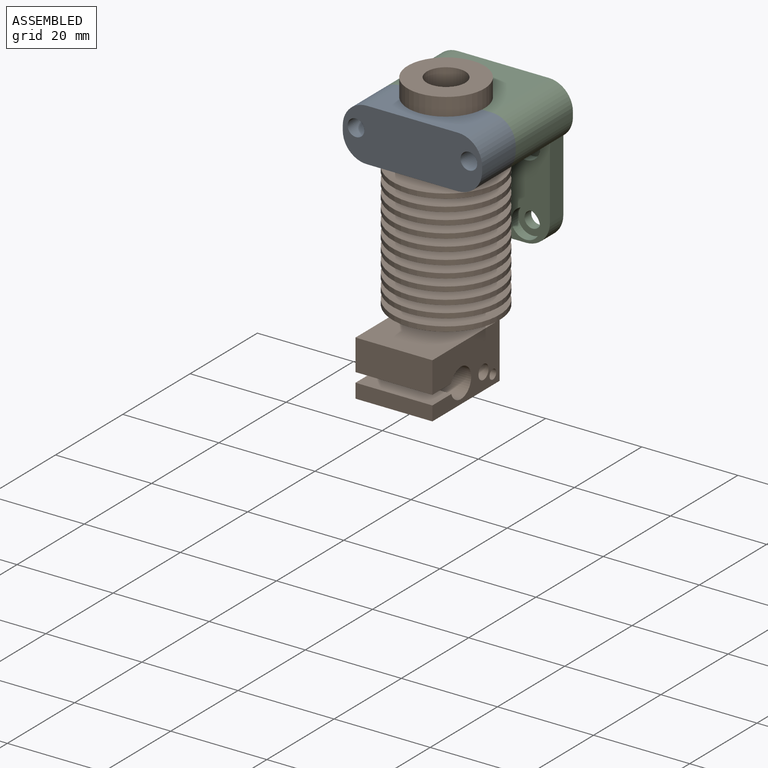
[diagram: assembled view]
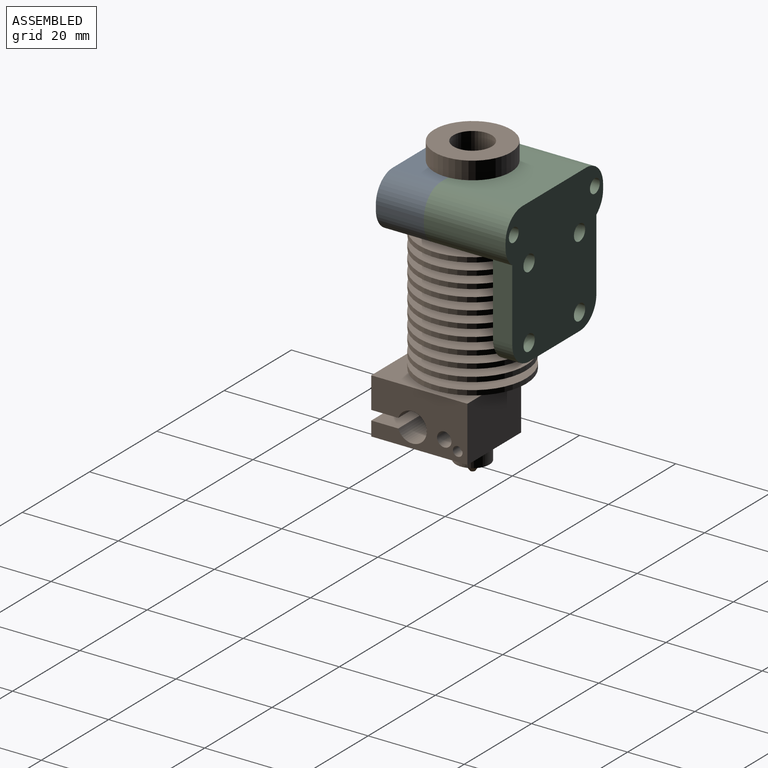
[diagram: assembled view, second angle]
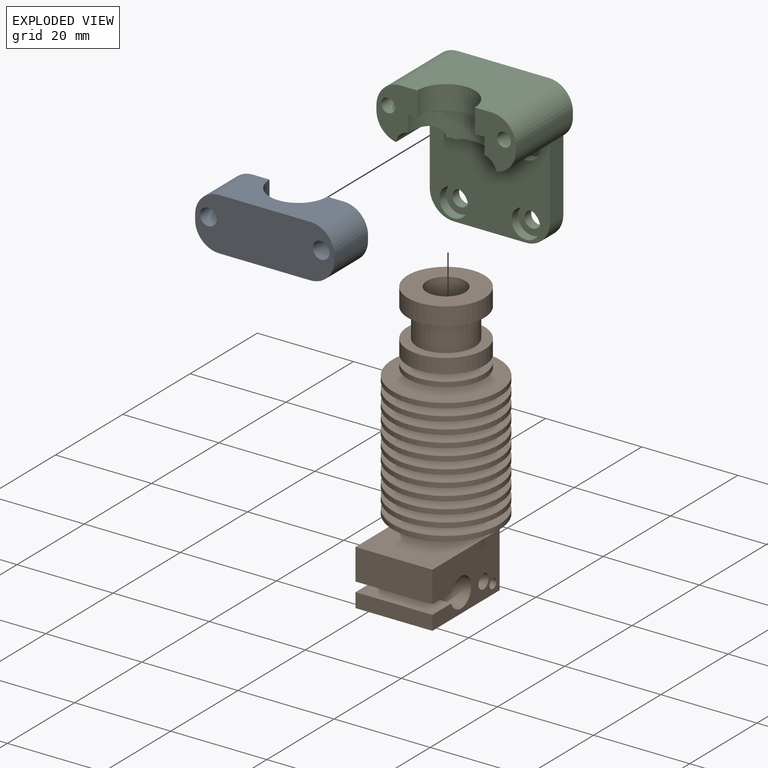
[diagram: exploded view]
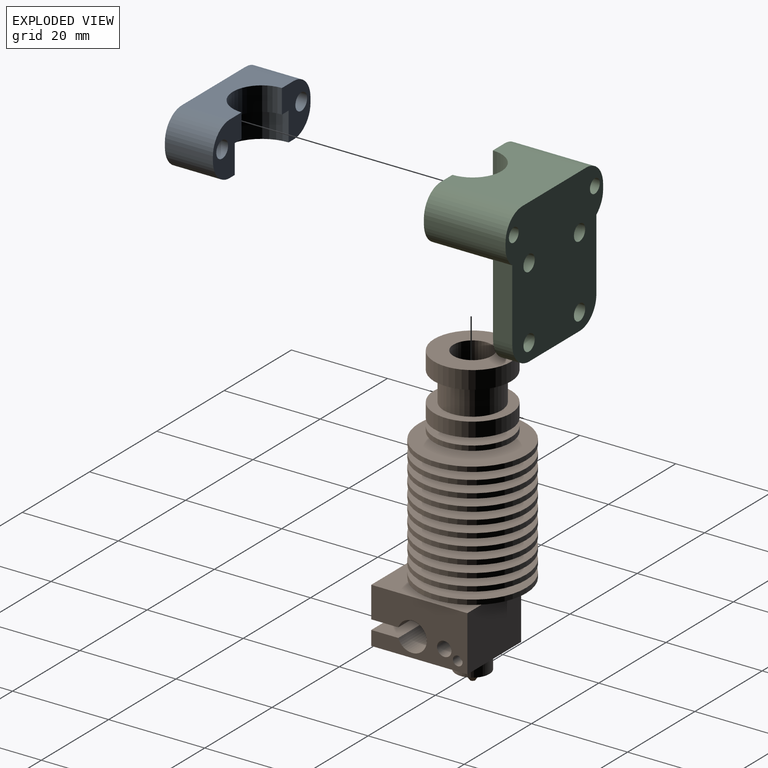
[diagram: exploded view, second angle]
ASSEMBLY  parts=3 mates=2
PART A: 16 faces, bbox 29x11x10 mm
  f0: plane 11x8.5mm, normal (0,0,1), area 61.1mm2, adj f1,f2,f5,f6,f7,f9,f10,f11
  f1: plane 19x10mm, normal (0,-1,0), area 89.5mm2, adj f0,f3,f4,f5,f11,f12
  f2: plane 19x10mm, normal (0,1,0), area 133.5mm2, adj f0,f3,f4,f7,f10,f13
  f3: plane 11x8.5mm, normal (0,0,1), area 61.1mm2, adj f1,f2,f5,f6,f7,f8,f12,f13
  f4: plane 29x11mm, normal (0,0,-1), area 278.3mm2, adj f1,f2,f8,f9,f10,f11,f12,f13
  f5: cylinder r=8mm len=16mm, axis (0,-1,0), area 150.8mm2, adj f0,f1,f3,f6
  f6: plane 16x8mm, normal (0,-1,0), area 44mm2, adj f0,f3,f5,f7
  f7: cylinder r=6mm len=12mm, axis (0,1,0), area 94.2mm2, adj f0,f2,f3,f6
  f8: plane 10x1mm, normal (-1,0,0), area 10mm2, adj f3,f4,f12,f13
  f9: plane 10x1mm, normal (1,0,0), area 10mm2, adj f0,f4,f10,f11
  f10: cylinder r=5mm len=10mm, axis (0,0,-1), area 78.5mm2, adj f0,f2,f4,f9
  f11: cylinder r=5mm len=10mm, axis (0,0,1), area 78.5mm2, adj f0,f1,f4,f9
  f12: cylinder r=5mm len=10mm, axis (0,0,1), area 78.5mm2, adj f1,f3,f4,f8
  f13: cylinder r=5mm len=10mm, axis (0,0,-1), area 78.5mm2, adj f2,f3,f4,f8
  f14: cylinder r=1.75mm len=10mm, axis (0,0,1), area 110mm2, adj f0,f4
  f15: cylinder r=1.75mm len=10mm, axis (0,0,1), area 110mm2, adj f3,f4
PART B: 92 faces, bbox 26.7x22.3x62 mm
  f0: cylinder r=2.1mm len=18.9mm, axis (0,0,1), area 249.4mm2, adj f57,f59
  f1: cylinder r=8mm len=16mm, axis (0,0,1), area 186mm2, adj f2,f3
  f2: plane 16x16mm, normal (0,0,-1), area 88mm2, adj f1,f4
  f3: plane 16x16mm, normal (0,0,1), area 150.8mm2, adj f1,f56
  f4: cylinder r=6mm len=12mm, axis (0,0,1), area 226.2mm2, adj f2,f7
  f5: cylinder r=8mm len=16mm, axis (0,0,1), area 150.8mm2, adj f6,f7
  f6: plane 16x16mm, normal (0,0,-1), area 150.8mm2, adj f5,f55
  f7: plane 16x16mm, normal (0,0,1), area 88mm2, adj f4,f5
  f8: plane 22.3x22.3mm, normal (0,0,-1), area 359.9mm2, adj f9,f60
  f9: cylinder r=11.15mm len=22.3mm, axis (0,0,1), area 70.1mm2, adj f8,f10
  f10: plane 22.3x22.3mm, normal (0,0,1), area 277.5mm2, adj f9,f11
  f11: cone r=5.89mm half-angle=4.2deg, axis (0,0,-1), area 56.2mm2, adj f10,f12
  f12: plane 22.3x22.3mm, normal (0,0,-1), area 281.5mm2, adj f11,f13
  f13: cylinder r=11.15mm len=22.3mm, axis (0,0,1), area 70.1mm2, adj f12,f14
  f14: plane 22.3x22.3mm, normal (0,0,1), area 284.2mm2, adj f13,f15
  f15: cone r=5.71mm half-angle=4.2deg, axis (0,0,-1), area 54.5mm2, adj f14,f16
  f16: plane 22.3x22.3mm, normal (0,0,-1), area 288.2mm2, adj f15,f17
  f17: cylinder r=11.15mm len=22.3mm, axis (0,0,1), area 70.1mm2, adj f16,f18
  f18: plane 22.3x22.3mm, normal (0,0,1), area 290.8mm2, adj f17,f19
  f19: cone r=5.53mm half-angle=4.2deg, axis (0,0,-1), area 52.7mm2, adj f18,f20
  f20: plane 22.3x22.3mm, normal (0,0,-1), area 294.6mm2, adj f19,f21
  f21: cylinder r=11.15mm len=22.3mm, axis (0,0,1), area 70.1mm2, adj f20,f22
  f22: plane 22.3x22.3mm, normal (0,0,1), area 297.1mm2, adj f21,f23
  f23: cone r=5.35mm half-angle=4.2deg, axis (0,0,-1), area 51mm2, adj f22,f24
  f24: plane 22.3x22.3mm, normal (0,0,-1), area 300.8mm2, adj f23,f25
  f25: cylinder r=11.15mm len=22.3mm, axis (0,0,1), area 70.1mm2, adj f24,f26
  f26: plane 22.3x22.3mm, normal (0,0,1), area 303.2mm2, adj f25,f27
  f27: cone r=5.16mm half-angle=4.2deg, axis (0,0,-1), area 49.3mm2, adj f26,f28
  f28: plane 22.3x22.3mm, normal (0,0,-1), area 306.8mm2, adj f27,f29
  f29: cylinder r=11.15mm len=22.3mm, axis (0,0,1), area 70.1mm2, adj f28,f30
  f30: plane 22.3x22.3mm, normal (0,0,1), area 309.1mm2, adj f29,f31
  f31: cone r=4.98mm half-angle=4.2deg, axis (0,0,-1), area 47.6mm2, adj f30,f32
  f32: plane 22.3x22.3mm, normal (0,0,-1), area 312.6mm2, adj f31,f33
  f33: cylinder r=11.15mm len=22.3mm, axis (0,0,1), area 70.1mm2, adj f32,f34
  f34: plane 22.3x22.3mm, normal (0,0,1), area 314.9mm2, adj f33,f35
  f35: cone r=4.8mm half-angle=4.2deg, axis (0,0,-1), area 45.9mm2, adj f34,f36
  f36: plane 22.3x22.3mm, normal (0,0,-1), area 318.2mm2, adj f35,f37
  f37: cylinder r=11.15mm len=22.3mm, axis (0,0,1), area 70.1mm2, adj f36,f38
  f38: plane 22.3x22.3mm, normal (0,0,1), area 320.4mm2, adj f37,f39
  f39: cone r=4.62mm half-angle=4.2deg, axis (0,0,-1), area 44.2mm2, adj f38,f40
  f40: plane 22.3x22.3mm, normal (0,0,-1), area 323.6mm2, adj f39,f41
  f41: cylinder r=11.15mm len=22.3mm, axis (0,0,1), area 70.1mm2, adj f40,f42
  f42: plane 22.3x22.3mm, normal (0,0,1), area 325.7mm2, adj f41,f43
  f43: cone r=4.44mm half-angle=4.2deg, axis (0,0,-1), area 42.4mm2, adj f42,f44
  f44: plane 22.3x22.3mm, normal (0,0,-1), area 328.7mm2, adj f43,f45
  f45: cylinder r=11.15mm len=22.3mm, axis (0,0,1), area 70.1mm2, adj f44,f46
  f46: plane 22.3x22.3mm, normal (0,0,1), area 330.8mm2, adj f45,f47
  f47: cone r=4.25mm half-angle=4.2deg, axis (0,0,-1), area 40.7mm2, adj f46,f48
  f48: plane 22.3x22.3mm, normal (0,0,-1), area 333.7mm2, adj f47,f49
  f49: cylinder r=11.15mm len=22.3mm, axis (0,0,1), area 70.1mm2, adj f48,f50
  f50: plane 22.3x22.3mm, normal (0,0,1), area 335.6mm2, adj f49,f51
  f51: cone r=4.07mm half-angle=4.2deg, axis (0,0,-1), area 39mm2, adj f50,f52
  f52: plane 16x16mm, normal (0,0,-1), area 149mm2, adj f51,f53
  f53: cylinder r=8mm len=16mm, axis (0,0,1), area 50.3mm2, adj f52,f54
  f54: plane 16x16mm, normal (0,0,1), area 150.8mm2, adj f53,f55
  f55: cylinder r=4mm len=8mm, axis (0,0,1), area 37.7mm2, adj f6,f54
  f56: cylinder r=4mm len=8mm, axis (0,0,1), area 153.3mm2, adj f3,f57
  f57: cone r=4.1mm half-angle=45deg, axis (0,0,1), area 51.5mm2, adj f0,f56
  f58: cylinder r=3mm len=14.9mm, axis (0,0,-1), area 280.9mm2, adj f59,f85
  f59: cone r=3.1mm half-angle=45deg, axis (0,0,-1), area 20.4mm2, adj f0,f58
  f60: cylinder r=3.12mm len=6.25mm, axis (0,0,1), area 49.1mm2, adj f8,f80
  f61: cylinder r=2.75mm len=5.5mm, axis (0,0,-1), area 25.9mm2, adj f62,f67
  f62: plane 7x7mm, normal (0,0,1), area 14.7mm2, adj f61,f63
  f63: cylinder r=3.5mm len=7mm, axis (0,0,-1), area 66mm2, adj f62,f64
  f64: plane 7x7mm, normal (0,0,-1), area 27.1mm2, adj f63,f65
  f65: cone r=0.5mm half-angle=35deg, axis (0,0,1), area 18.4mm2, adj f64,f66
  f66: plane 1x1mm, normal (0,0,-1), area 0.8mm2, adj f65
  f67: plane 6x6mm, normal (0,0,-1), area 4.5mm2, adj f61,f74
  f68: plane 1.6x1.6mm, normal (0,-1,0), area 2mm2, adj f69
  f69: cylinder r=0.8mm len=2.5mm, axis (0,-1,0), area 12.6mm2, adj f68,f70
  f70: plane 2x2mm, normal (0,-1,0), area 1.1mm2, adj f69,f71
  f71: cylinder r=1mm len=2mm, axis (0,-1,0), area 12.6mm2, adj f70,f76
  f72: plane 3x3mm, normal (0,-1,0), area 7.1mm2, adj f73
  f73: cylinder r=1.5mm len=3.5mm, axis (0,-1,0), area 33mm2, adj f72,f76
  f74: cylinder r=3mm len=6mm, axis (0,0,-1), area 23.6mm2, adj f67,f82
  f75: plane 20x11.5mm, normal (0,1,0), area 189.8mm2, adj f77,f78,f79,f80,f81,f82,f83,f84
  f76: plane 20x11.5mm, normal (0,-1,0), area 179.6mm2, adj f71,f73,f77,f78,f79,f80,f81,f82
  f77: cylinder r=3.05mm len=16mm, axis (0,1,0), area 274mm2, adj f75,f76,f78,f84
  f78: plane 16x5.62mm, normal (0,0,-1), area 89.9mm2, adj f75,f76,f77,f79
  f79: plane 16x6.5mm, normal (-1,0,0), area 104mm2, adj f75,f76,f78,f80
  f80: plane 20x16mm, normal (0,0,1), area 289.3mm2, adj f60,f75,f76,f79,f81
  f81: plane 16x11.5mm, normal (1,0,0), area 184mm2, adj f75,f76,f80,f82
  f82: plane 20x16mm, normal (0,0,-1), area 291.7mm2, adj f74,f75,f76,f81,f83
  f83: plane 16x3mm, normal (-1,0,0), area 48mm2, adj f75,f76,f82,f84
  f84: plane 16x5.62mm, normal (0,0,1), area 89.9mm2, adj f75,f76,f77,f83
  f85: plane 6x6mm, normal (0,0,1), area 15.7mm2, adj f58,f86
  f86: cylinder r=2mm len=4.61mm, axis (0,0,1), area 57.9mm2, adj f85,f87
  f87: plane 6x6mm, normal (0,0,-1), area 15.7mm2, adj f86,f88
  f88: cylinder r=3mm len=7.89mm, axis (0,0,-1), area 148.8mm2, adj f87,f91
  f89: plane 5x5mm, normal (0,0,1), area 19.6mm2, adj f90
  f90: cylinder r=2.5mm len=5mm, axis (0,0,-1), area 27.5mm2, adj f89,f91
  f91: plane 6x6mm, normal (0,0,1), area 8.6mm2, adj f88,f90
PART C: 34 faces, bbox 29x30x17 mm
  f0: plane 9.06x6.41mm, normal (0,-1,0), area 49.4mm2, adj f1,f14,f18,f20
  f1: cylinder r=8mm len=16mm, axis (0,-1,0), area 116.2mm2, adj f0,f8,f16,f17,f18,f20
  f2: cylinder r=5mm len=17mm, axis (0,0,-1), area 108.2mm2, adj f12,f14,f15,f16,f18,f29
  f3: cylinder r=5mm len=17mm, axis (0,0,-1), area 108.2mm2, adj f8,f10,f14,f15,f20,f26
  f4: cylinder r=1.68mm len=3.35mm, axis (0,0,1), area 21mm2, adj f15,f21
  f5: cylinder r=1.68mm len=3.35mm, axis (0,0,1), area 21mm2, adj f15,f25
  f6: cylinder r=1.68mm len=3.35mm, axis (0,0,1), area 21mm2, adj f15,f23
  f7: cylinder r=1.68mm len=3.35mm, axis (0,0,1), area 21mm2, adj f15,f19
  f8: plane 10.91x8.5mm, normal (0,0,1), area 59.7mm2, adj f1,f3,f9,f13,f17,f20,f26,f31
  f9: cylinder r=6mm len=12mm, axis (0,1,0), area 94.2mm2, adj f8,f13,f16,f17
  f10: plane 15x4mm, normal (-1,0,0), area 60mm2, adj f3,f14,f15,f27
  f11: plane 15x4mm, normal (0,-1,0), area 60mm2, adj f14,f15,f27,f28
  f12: plane 15x4mm, normal (1,0,0), area 60mm2, adj f2,f14,f15,f28
  f13: plane 19x17mm, normal (0,1,0), area 266.5mm2, adj f8,f9,f15,f16,f32,f33
  f14: plane 25x20mm, normal (0,0,1), area 376mm2, adj f0,f2,f3,f10,f11,f12,f18,f20
  f15: plane 30x29mm, normal (0,0,-1), area 715.3mm2, adj f2,f3,f4,f5,f6,f7,f10,f11
  f16: plane 10.91x8.5mm, normal (0,0,1), area 59.7mm2, adj f1,f2,f9,f13,f17,f18,f29,f30
  f17: plane 16x8mm, normal (0,-1,0), area 44mm2, adj f1,f8,f9,f16
  f18: cylinder r=3mm len=15mm, axis (0,0,1), area 123.4mm2, adj f0,f1,f2,f14,f16,f19
  f19: plane 6x6mm, normal (0,0,1), area 19.5mm2, adj f7,f18
  f20: cylinder r=3mm len=15mm, axis (0,0,1), area 123.4mm2, adj f0,f1,f3,f8,f14,f21
  f21: plane 6x6mm, normal (0,0,1), area 19.5mm2, adj f4,f20
  f22: cylinder r=3mm len=6mm, axis (0,0,1), area 37.7mm2, adj f14,f23
  f23: plane 6x6mm, normal (0,0,1), area 19.5mm2, adj f6,f22
  f24: cylinder r=3mm len=6mm, axis (0,0,1), area 37.7mm2, adj f14,f25
  f25: plane 6x6mm, normal (0,0,1), area 19.5mm2, adj f5,f24
  f26: plane 17x1mm, normal (-1,0,0), area 17mm2, adj f3,f8,f15,f33
  f27: cylinder r=5mm len=5mm, axis (0,0,1), area 31.4mm2, adj f10,f11,f14,f15
  f28: cylinder r=5mm len=5mm, axis (0,0,-1), area 31.4mm2, adj f11,f12,f14,f15
  f29: plane 17x1mm, normal (1,0,0), area 17mm2, adj f2,f15,f16,f32
  f30: cylinder r=1.45mm len=17mm, axis (0,0,1), area 154.9mm2, adj f15,f16
  f31: cylinder r=1.45mm len=17mm, axis (0,0,1), area 154.9mm2, adj f8,f15
  f32: cylinder r=5mm len=17mm, axis (0,0,-1), area 133.5mm2, adj f13,f15,f16,f29
  f33: cylinder r=5mm len=17mm, axis (0,0,-1), area 133.5mm2, adj f8,f13,f15,f26
PLACE A rot(axis=(0,0.71,0.71),180deg) t=(-14.3,-27,33.24)mm
PLACE B rot(axis=(0,0,1),90deg) t=(-26.8,-17,48.34)mm
PLACE C rot(axis=(1,0,0),90deg) t=(-39.3,0,14.24)mm
MATE fastened A.f3 <-> C.f16  axis (0,1,0) through (-12.3,-17,39.24)mm
MATE fastened B.f0 <-> C.f1  axis (0,0,1) through (-26.8,-17,42.24)mm
